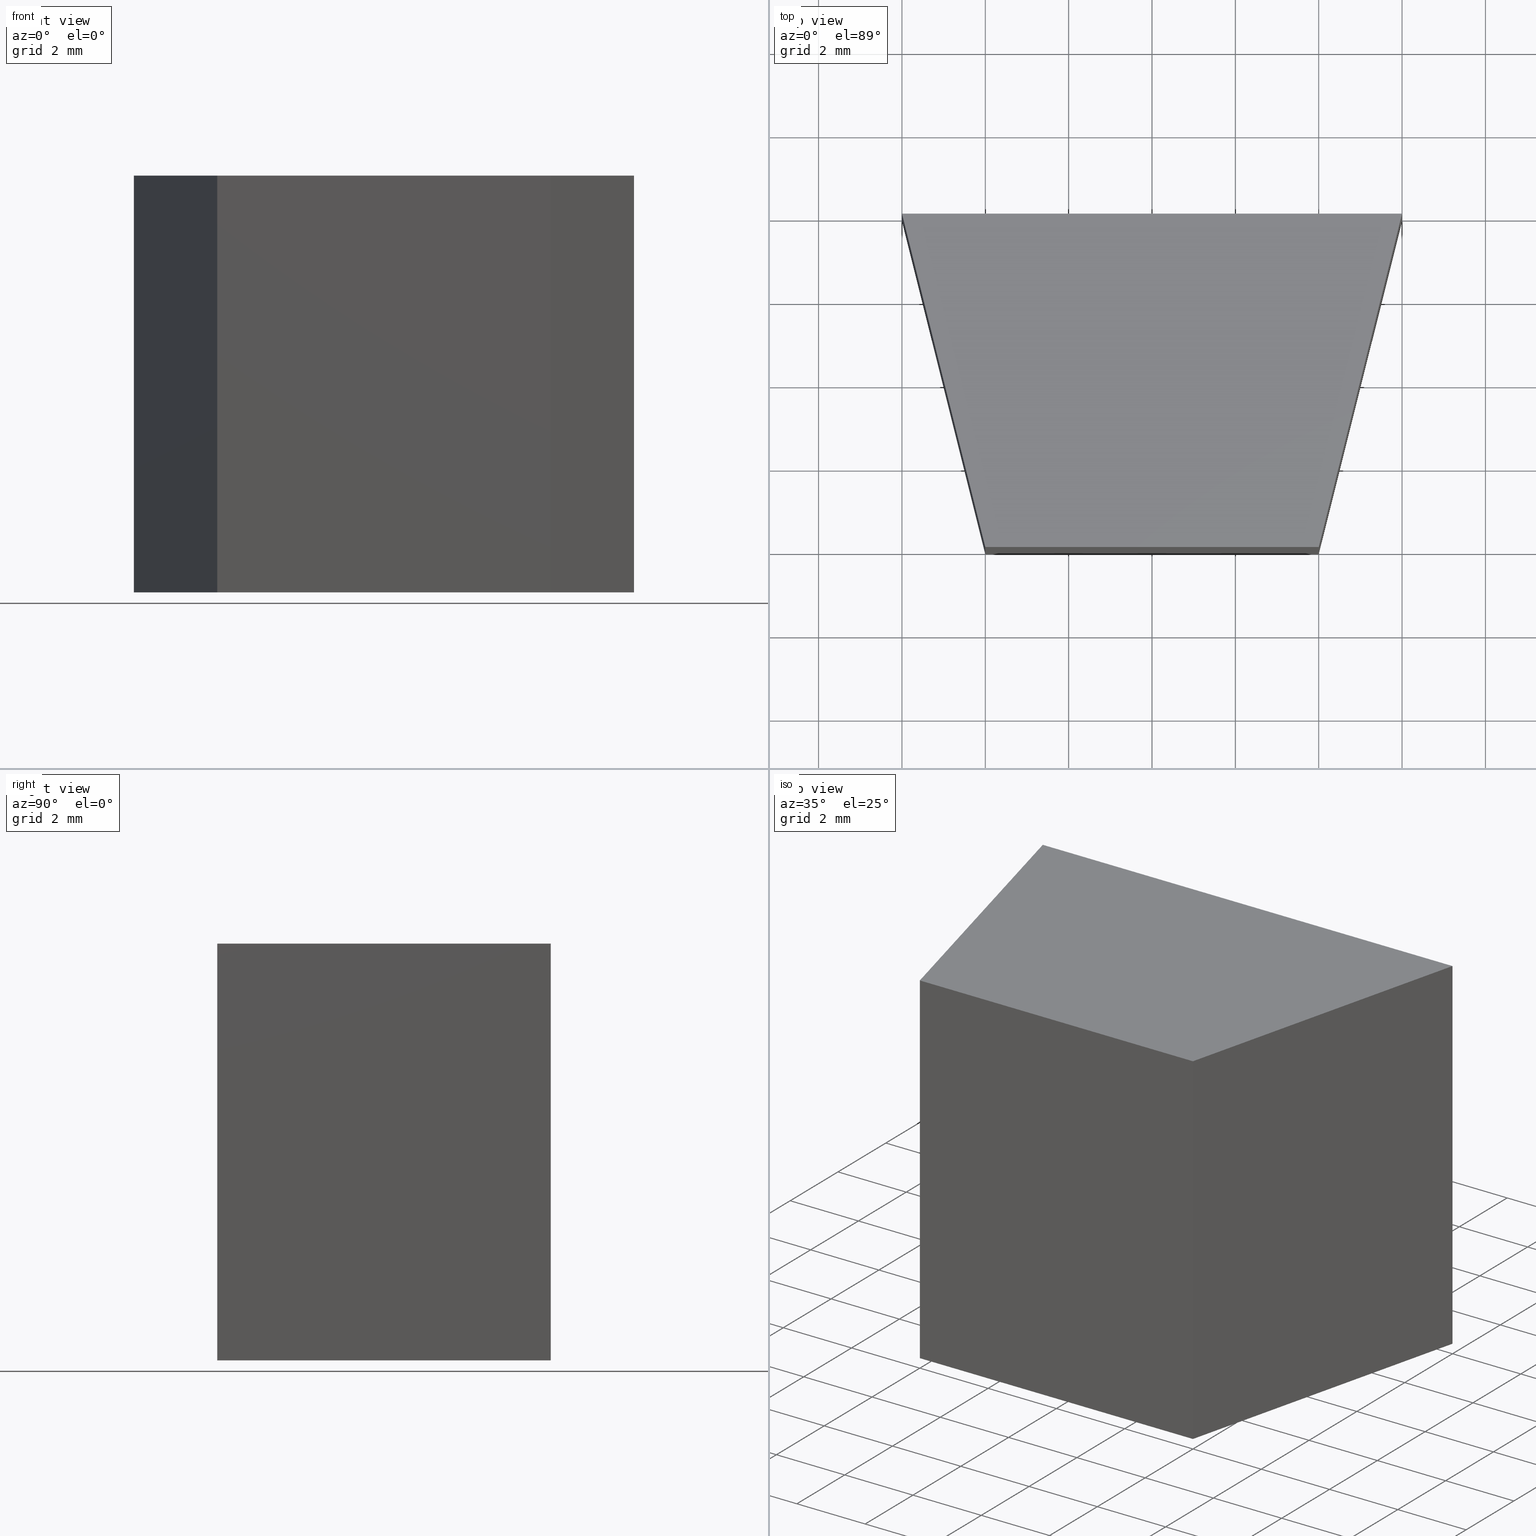
[diagram: canonical four-view strip — front | top / right | iso, engineering-drawing reading convention]
A machine part, canonical four-view strip (front | top / right | iso — engineering-drawing reading convention). The complete STEP part file that produces these views, byte-faithful:
ISO-10303-21;
HEADER;
/* Generated by software containing ST-Developer
 * from STEP Tools, Inc. (www.steptools.com) 
 */

FILE_DESCRIPTION(
/* description */ (''),
/* implementation_level */ '2;1');

FILE_NAME(
/* name */ 'E_3_01_05_07_00_WKZ-0218.stp',
/* time_stamp */ '2025-11-24T13:11:33+01:00',
/* author */ ('d.fischer'),
/* organization */ (''),
/* preprocessor_version */ 'ST-DEVELOPER v20',
/* originating_system */ 'Autodesk Inventor 2025',
/* authorisation */ '');

FILE_SCHEMA (('AUTOMOTIVE_DESIGN { 1 0 10303 214 3 1 1 }'));
ENDSEC;

DATA;
#10=MECHANICAL_DESIGN_GEOMETRIC_PRESENTATION_REPRESENTATION('',(#13),#192);
#11=SHAPE_REPRESENTATION_RELATIONSHIP('SRR','None',#199,#12);
#12=ADVANCED_BREP_SHAPE_REPRESENTATION('',(#14),#191);
#13=STYLED_ITEM('',(#208),#14);
#14=MANIFOLD_SOLID_BREP('Volumenk\X\F6rper1',#107);
#15=FACE_OUTER_BOUND('',#21,.T.);
#16=FACE_OUTER_BOUND('',#22,.T.);
#17=FACE_OUTER_BOUND('',#23,.T.);
#18=FACE_OUTER_BOUND('',#24,.T.);
#19=FACE_OUTER_BOUND('',#25,.T.);
#20=FACE_OUTER_BOUND('',#26,.T.);
#21=EDGE_LOOP('',(#71,#72,#73,#74));
#22=EDGE_LOOP('',(#75,#76,#77,#78));
#23=EDGE_LOOP('',(#79,#80,#81,#82));
#24=EDGE_LOOP('',(#83,#84,#85,#86));
#25=EDGE_LOOP('',(#87,#88,#89,#90));
#26=EDGE_LOOP('',(#91,#92,#93,#94));
#27=LINE('',#166,#39);
#28=LINE('',#168,#40);
#29=LINE('',#170,#41);
#30=LINE('',#171,#42);
#31=LINE('',#175,#43);
#32=LINE('',#176,#44);
#33=LINE('',#177,#45);
#34=LINE('',#180,#46);
#35=LINE('',#181,#47);
#36=LINE('',#184,#48);
#37=LINE('',#185,#49);
#38=LINE('',#187,#50);
#39=VECTOR('',#140,10.);
#40=VECTOR('',#141,10.);
#41=VECTOR('',#142,10.);
#42=VECTOR('',#143,10.);
#43=VECTOR('',#146,10.);
#44=VECTOR('',#147,10.);
#45=VECTOR('',#148,10.);
#46=VECTOR('',#151,10.);
#47=VECTOR('',#152,10.);
#48=VECTOR('',#155,10.);
#49=VECTOR('',#156,10.);
#50=VECTOR('',#159,10.);
#51=VERTEX_POINT('',#164);
#52=VERTEX_POINT('',#165);
#53=VERTEX_POINT('',#167);
#54=VERTEX_POINT('',#169);
#55=VERTEX_POINT('',#173);
#56=VERTEX_POINT('',#174);
#57=VERTEX_POINT('',#179);
#58=VERTEX_POINT('',#183);
#59=EDGE_CURVE('',#51,#52,#27,.T.);
#60=EDGE_CURVE('',#53,#51,#28,.T.);
#61=EDGE_CURVE('',#54,#53,#29,.T.);
#62=EDGE_CURVE('',#52,#54,#30,.T.);
#63=EDGE_CURVE('',#55,#56,#31,.T.);
#64=EDGE_CURVE('',#56,#54,#32,.T.);
#65=EDGE_CURVE('',#55,#53,#33,.T.);
#66=EDGE_CURVE('',#56,#57,#34,.T.);
#67=EDGE_CURVE('',#57,#52,#35,.T.);
#68=EDGE_CURVE('',#57,#58,#36,.T.);
#69=EDGE_CURVE('',#51,#58,#37,.T.);
#70=EDGE_CURVE('',#58,#55,#38,.T.);
#71=ORIENTED_EDGE('',*,*,#59,.F.);
#72=ORIENTED_EDGE('',*,*,#60,.F.);
#73=ORIENTED_EDGE('',*,*,#61,.F.);
#74=ORIENTED_EDGE('',*,*,#62,.F.);
#75=ORIENTED_EDGE('',*,*,#63,.T.);
#76=ORIENTED_EDGE('',*,*,#64,.T.);
#77=ORIENTED_EDGE('',*,*,#61,.T.);
#78=ORIENTED_EDGE('',*,*,#65,.F.);
#79=ORIENTED_EDGE('',*,*,#66,.T.);
#80=ORIENTED_EDGE('',*,*,#67,.T.);
#81=ORIENTED_EDGE('',*,*,#62,.T.);
#82=ORIENTED_EDGE('',*,*,#64,.F.);
#83=ORIENTED_EDGE('',*,*,#68,.T.);
#84=ORIENTED_EDGE('',*,*,#69,.F.);
#85=ORIENTED_EDGE('',*,*,#59,.T.);
#86=ORIENTED_EDGE('',*,*,#67,.F.);
#87=ORIENTED_EDGE('',*,*,#70,.T.);
#88=ORIENTED_EDGE('',*,*,#65,.T.);
#89=ORIENTED_EDGE('',*,*,#60,.T.);
#90=ORIENTED_EDGE('',*,*,#69,.T.);
#91=ORIENTED_EDGE('',*,*,#63,.F.);
#92=ORIENTED_EDGE('',*,*,#70,.F.);
#93=ORIENTED_EDGE('',*,*,#68,.F.);
#94=ORIENTED_EDGE('',*,*,#66,.F.);
#95=PLANE('',#130);
#96=PLANE('',#131);
#97=PLANE('',#132);
#98=PLANE('',#133);
#99=PLANE('',#134);
#100=PLANE('',#135);
#101=ADVANCED_FACE('',(#15),#95,.F.);
#102=ADVANCED_FACE('',(#16),#96,.T.);
#103=ADVANCED_FACE('',(#17),#97,.T.);
#104=ADVANCED_FACE('',(#18),#98,.T.);
#105=ADVANCED_FACE('',(#19),#99,.T.);
#106=ADVANCED_FACE('',(#20),#100,.T.);
#107=CLOSED_SHELL('',(#101,#102,#103,#104,#105,#106));
#108=DERIVED_UNIT_ELEMENT(#111,1.);
#109=DERIVED_UNIT_ELEMENT(#194,-3.);
#110=DIMENSIONAL_EXPONENTS(0.,1.,0.,0.,0.,0.,0.);
#111=(
CONVERSION_BASED_UNIT('gram',#113)
MASS_UNIT()
NAMED_UNIT(#110)
);
#112=(
MASS_UNIT()
NAMED_UNIT(*)
SI_UNIT(.KILO.,.GRAM.)
);
#113=MASS_MEASURE_WITH_UNIT(MASS_MEASURE(0.001),#112);
#114=DERIVED_UNIT((#108,#109));
#115=MEASURE_REPRESENTATION_ITEM('density measure',
POSITIVE_RATIO_MEASURE(8.03),#114);
#116=PROPERTY_DEFINITION_REPRESENTATION(#121,#118);
#117=PROPERTY_DEFINITION_REPRESENTATION(#122,#119);
#118=REPRESENTATION('material name',(#120),#191);
#119=REPRESENTATION('density',(#115),#191);
#120=DESCRIPTIVE_REPRESENTATION_ITEM('1.4301','1.4301');
#121=PROPERTY_DEFINITION('material property','material name',#201);
#122=PROPERTY_DEFINITION('material property','density of part',#201);
#123=DATE_TIME_ROLE('creation_date');
#124=APPLIED_DATE_AND_TIME_ASSIGNMENT(#125,#123,(#201));
#125=DATE_AND_TIME(#126,#127);
#126=CALENDAR_DATE(2011,18,10);
#127=LOCAL_TIME(0,0,0.,#128);
#128=COORDINATED_UNIVERSAL_TIME_OFFSET(0,0,.BEHIND.);
#129=AXIS2_PLACEMENT_3D('',#162,#136,#137);
#130=AXIS2_PLACEMENT_3D('',#163,#138,#139);
#131=AXIS2_PLACEMENT_3D('',#172,#144,#145);
#132=AXIS2_PLACEMENT_3D('',#178,#149,#150);
#133=AXIS2_PLACEMENT_3D('',#182,#153,#154);
#134=AXIS2_PLACEMENT_3D('',#186,#157,#158);
#135=AXIS2_PLACEMENT_3D('',#188,#160,#161);
#136=DIRECTION('axis',(0.,0.,1.));
#137=DIRECTION('refdir',(1.,0.,0.));
#138=DIRECTION('center_axis',(0.,0.,1.));
#139=DIRECTION('ref_axis',(1.,0.,0.));
#140=DIRECTION('',(0.242535625036333,0.970142500145332,0.));
#141=DIRECTION('',(1.,0.,0.));
#142=DIRECTION('',(0.242535625036333,-0.970142500145332,0.));
#143=DIRECTION('',(-1.,0.,0.));
#144=DIRECTION('center_axis',(-0.970142500145332,-0.242535625036333,0.));
#145=DIRECTION('ref_axis',(0.,0.,1.));
#146=DIRECTION('',(-0.242535625036333,0.970142500145332,0.));
#147=DIRECTION('',(0.,0.,-1.));
#148=DIRECTION('',(0.,0.,-1.));
#149=DIRECTION('center_axis',(0.,1.,0.));
#150=DIRECTION('ref_axis',(0.,0.,1.));
#151=DIRECTION('',(1.,0.,0.));
#152=DIRECTION('',(0.,0.,-1.));
#153=DIRECTION('center_axis',(0.970142500145332,-0.242535625036333,0.));
#154=DIRECTION('ref_axis',(0.,0.,-1.));
#155=DIRECTION('',(-0.242535625036333,-0.970142500145332,0.));
#156=DIRECTION('',(0.,0.,1.));
#157=DIRECTION('center_axis',(0.,-1.,0.));
#158=DIRECTION('ref_axis',(0.,0.,-1.));
#159=DIRECTION('',(-1.,0.,0.));
#160=DIRECTION('center_axis',(0.,0.,1.));
#161=DIRECTION('ref_axis',(1.,0.,0.));
#162=CARTESIAN_POINT('',(0.,0.,0.));
#163=CARTESIAN_POINT('Origin',(4.16333634234434E-16,0.43844718719117,-5.));
#164=CARTESIAN_POINT('',(4.,-4.,-5.));
#165=CARTESIAN_POINT('',(6.,4.,-5.));
#166=CARTESIAN_POINT('',(6.,4.,-5.));
#167=CARTESIAN_POINT('',(-4.,-4.,-5.));
#168=CARTESIAN_POINT('',(4.,-4.,-5.));
#169=CARTESIAN_POINT('',(-6.,4.,-5.));
#170=CARTESIAN_POINT('',(-4.,-4.,-5.));
#171=CARTESIAN_POINT('',(-6.,4.,-5.));
#172=CARTESIAN_POINT('Origin',(-4.,-4.,0.));
#173=CARTESIAN_POINT('',(-4.,-4.,5.));
#174=CARTESIAN_POINT('',(-6.,4.,5.));
#175=CARTESIAN_POINT('',(-4.,-4.,5.));
#176=CARTESIAN_POINT('',(-6.,4.,0.));
#177=CARTESIAN_POINT('',(-4.,-4.,0.));
#178=CARTESIAN_POINT('Origin',(-6.,4.,0.));
#179=CARTESIAN_POINT('',(6.,4.,5.));
#180=CARTESIAN_POINT('',(-6.,4.,5.));
#181=CARTESIAN_POINT('',(6.,4.,0.));
#182=CARTESIAN_POINT('Origin',(6.,4.,0.));
#183=CARTESIAN_POINT('',(4.,-4.,5.));
#184=CARTESIAN_POINT('',(6.,4.,5.));
#185=CARTESIAN_POINT('',(4.,-4.,0.));
#186=CARTESIAN_POINT('Origin',(4.,-4.,0.));
#187=CARTESIAN_POINT('',(4.,-4.,5.));
#188=CARTESIAN_POINT('Origin',(4.16333634234434E-16,0.43844718719117,5.));
#189=UNCERTAINTY_MEASURE_WITH_UNIT(LENGTH_MEASURE(0.01),#193,
'DISTANCE_ACCURACY_VALUE',
'Maximum model space distance between geometric entities at asserted c
onnectivities');
#190=UNCERTAINTY_MEASURE_WITH_UNIT(LENGTH_MEASURE(0.01),#193,
'DISTANCE_ACCURACY_VALUE',
'Maximum model space distance between geometric entities at asserted c
onnectivities');
#191=(
GEOMETRIC_REPRESENTATION_CONTEXT(3)
GLOBAL_UNCERTAINTY_ASSIGNED_CONTEXT((#189))
GLOBAL_UNIT_ASSIGNED_CONTEXT((#193,#195,#196))
REPRESENTATION_CONTEXT('','3D')
);
#192=(
GEOMETRIC_REPRESENTATION_CONTEXT(3)
GLOBAL_UNCERTAINTY_ASSIGNED_CONTEXT((#190))
GLOBAL_UNIT_ASSIGNED_CONTEXT((#193,#195,#196))
REPRESENTATION_CONTEXT('','3D')
);
#193=(
LENGTH_UNIT()
NAMED_UNIT(*)
SI_UNIT(.MILLI.,.METRE.)
);
#194=(
LENGTH_UNIT()
NAMED_UNIT(*)
SI_UNIT(.CENTI.,.METRE.)
);
#195=(
NAMED_UNIT(*)
PLANE_ANGLE_UNIT()
SI_UNIT($,.RADIAN.)
);
#196=(
NAMED_UNIT(*)
SI_UNIT($,.STERADIAN.)
SOLID_ANGLE_UNIT()
);
#197=SHAPE_DEFINITION_REPRESENTATION(#198,#199);
#198=PRODUCT_DEFINITION_SHAPE('',$,#201);
#199=SHAPE_REPRESENTATION('',(#129),#191);
#200=PRODUCT_DEFINITION_CONTEXT('part definition',#205,'design');
#201=PRODUCT_DEFINITION('WKZ-0218','E_3_01_05_07_00_WKZ-0218',#202,#200);
#202=PRODUCT_DEFINITION_FORMATION('',$,#207);
#203=PRODUCT_RELATED_PRODUCT_CATEGORY('E_3_01_05_07_00_WKZ-0218',
'E_3_01_05_07_00_WKZ-0218',(#207));
#204=APPLICATION_PROTOCOL_DEFINITION('international standard',
'automotive_design',2009,#205);
#205=APPLICATION_CONTEXT(
'Core Data for Automotive Mechanical Design Process');
#206=PRODUCT_CONTEXT('part definition',#205,'mechanical');
#207=PRODUCT('WKZ-0218','E_3_01_05_07_00_WKZ-0218',$,(#206));
#208=PRESENTATION_STYLE_ASSIGNMENT((#209));
#209=SURFACE_STYLE_USAGE(.BOTH.,#212);
#210=SURFACE_STYLE_RENDERING_WITH_PROPERTIES($,#216,(#211));
#211=SURFACE_STYLE_TRANSPARENT(0.);
#212=SURFACE_SIDE_STYLE('',(#213,#210));
#213=SURFACE_STYLE_FILL_AREA(#214);
#214=FILL_AREA_STYLE('',(#215));
#215=FILL_AREA_STYLE_COLOUR('',#216);
#216=COLOUR_RGB('',0.92156862745098,0.92156862745098,0.92156862745098);
ENDSEC;
END-ISO-10303-21;
